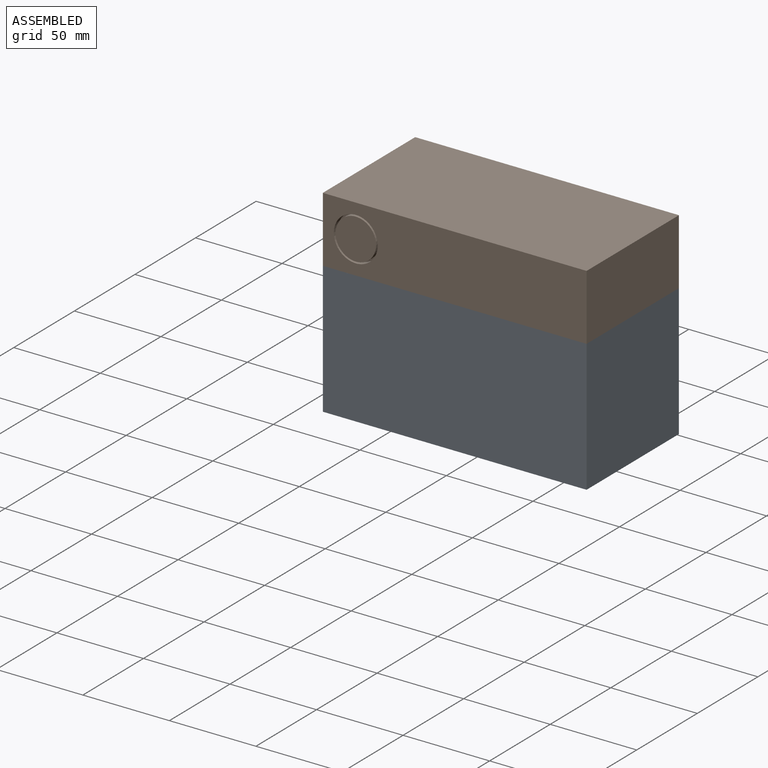
[diagram: assembled view]
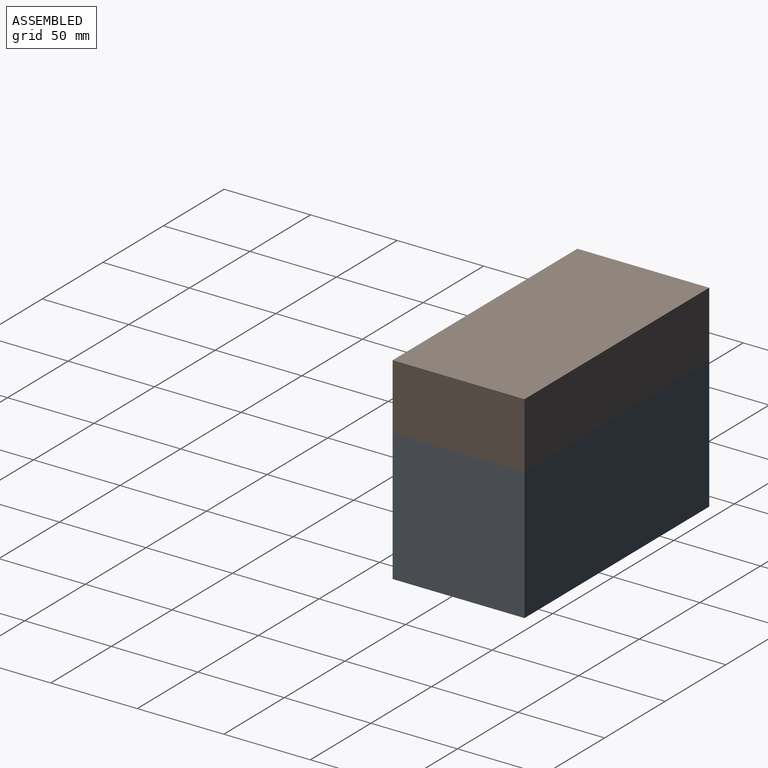
[diagram: assembled view, second angle]
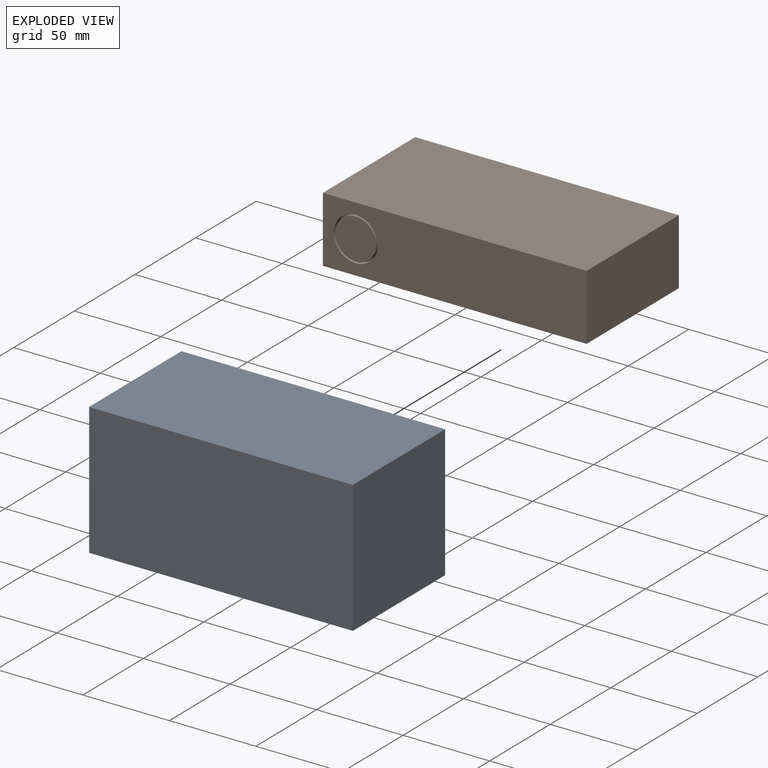
[diagram: exploded view]
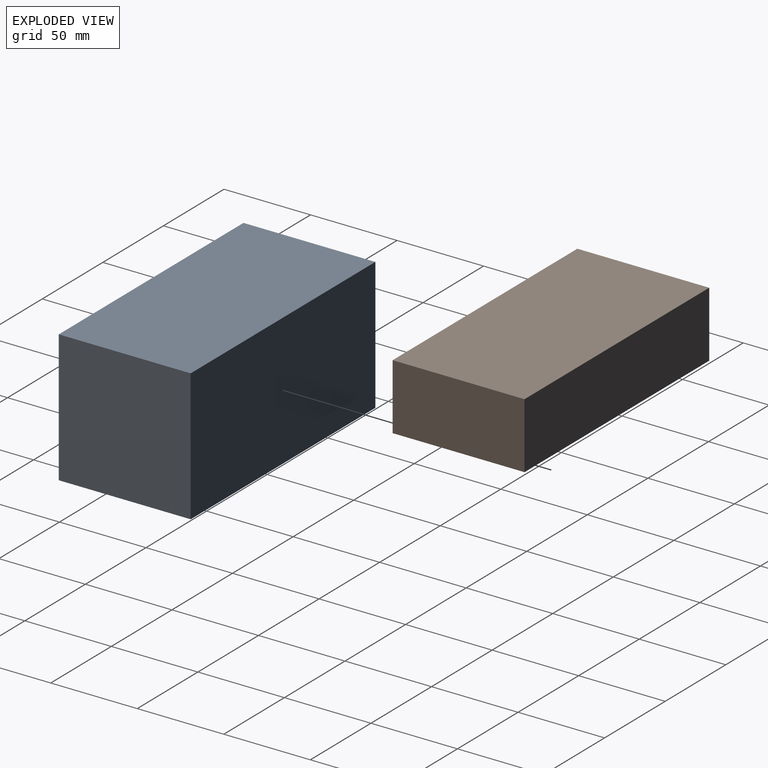
[diagram: exploded view, second angle]
ASSEMBLY  parts=2 mates=3
PART A: 6 faces, bbox 152.4x76.2x76.2 mm
  f0: plane 76.2x76.2mm, normal (1,0,0), area 5806.4mm2, adj f1,f3,f4,f5
  f1: plane 152.4x76.2mm, normal (0,0,1), area 11612.9mm2, adj f0,f2,f4,f5
  f2: plane 76.2x76.2mm, normal (-1,0,0), area 5806.4mm2, adj f1,f3,f4,f5
  f3: plane 152.4x76.2mm, normal (0,0,-1), area 11612.9mm2, adj f0,f2,f4,f5
  f4: plane 152.4x76.2mm, normal (0,-1,0), area 11612.9mm2, adj f0,f1,f2,f3
  f5: plane 152.4x76.2mm, normal (0,1,0), area 11612.9mm2, adj f0,f1,f2,f3
PART B: 10 faces, bbox 152.4x76.2x38.1 mm
  f0: plane 76.2x38.1mm, normal (1,0,0), area 2903.2mm2, adj f1,f3,f4,f5
  f1: plane 152.4x76.2mm, normal (0,0,1), area 11612.9mm2, adj f0,f2,f4,f5
  f2: plane 76.2x38.1mm, normal (-1,0,0), area 2903.2mm2, adj f1,f3,f4,f5
  f3: plane 152.4x76.2mm, normal (0,0,-1), area 11612.9mm2, adj f0,f2,f4,f5
  f4: plane 152.4x38.1mm, normal (0,-1,0), area 5299.7mm2, adj f0,f1,f2,f3,f7
  f5: plane 152.4x38.1mm, normal (0,1,0), area 5806.4mm2, adj f0,f1,f2,f3
  f6: cylinder r=11.74mm len=23.47mm, axis (0,-1,0), area 234.1mm2, adj f8,f9
  f7: cylinder r=12.7mm len=25.4mm, axis (0,-1,0), area 253.4mm2, adj f4,f8
  f8: plane 25.4x25.4mm, normal (0,-1,0), area 74mm2, adj f6,f7
  f9: plane 23.47x23.47mm, normal (0,-1,0), area 432.7mm2, adj f6
PLACE A t=(-58.93,-4.17,-17.24)mm
PLACE B t=(-58.93,-4.17,39.91)mm
MATE planar B.f4 <-> A.f4  axis (0,-1,0) through (-53.47,-80.37,39.91)mm
MATE planar B.f0 <-> A.f0  axis (1,0,0) through (17.27,-42.27,39.91)mm
MATE planar B.f3 <-> A.f1  axis (0,0,-1) through (17.27,-80.37,20.86)mm
